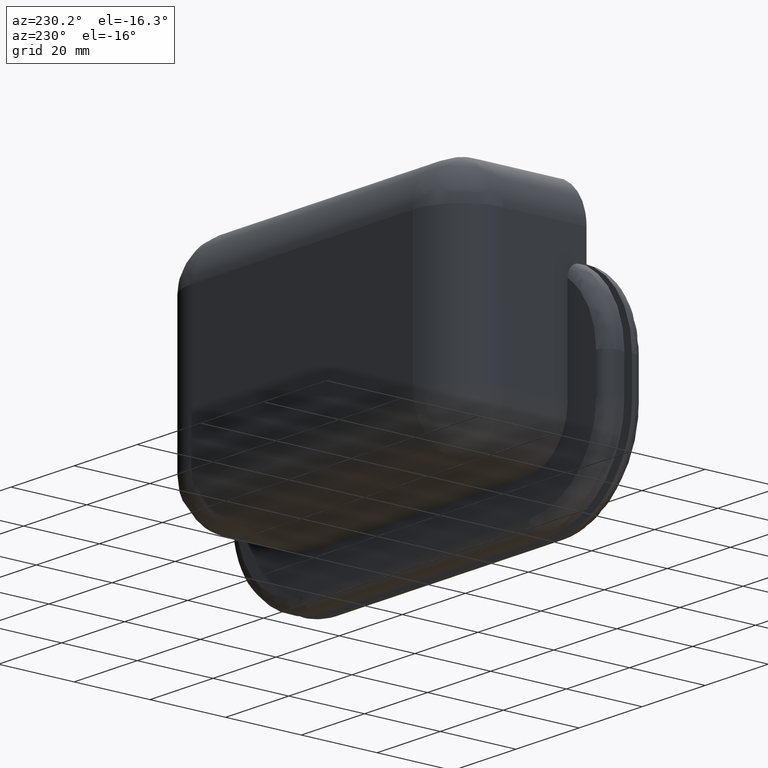
[diagram: clean part render]
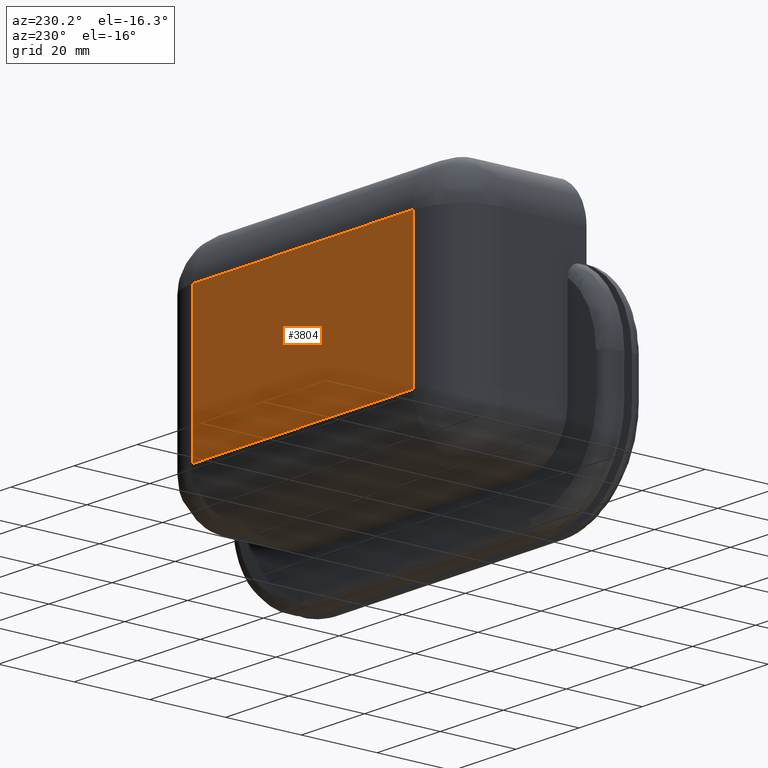
[diagram: same view with one face highlighted and labeled with its STEP entity id]
A machine part, auxiliary view. The second image highlights one B-rep face of the part: STEP entity #3804.
In plain terms, the highlighted face is a freeform B-spline surface patch.
Its self-contained STEP definition (entity closure, byte-faithful):
#1954=CARTESIAN_POINT('',(-35.0,43.0,34.0));
#1955=VERTEX_POINT('',#1954);
#2002=CARTESIAN_POINT('',(35.0,43.0,34.0));
#2003=VERTEX_POINT('',#2002);
#2017=CARTESIAN_POINT('',(-35.0,43.0,34.0));
#2018=CARTESIAN_POINT('',(35.0,43.0,34.0));
#2019=QUASI_UNIFORM_CURVE('',1,(#2017,#2018),.UNSPECIFIED.,.F.,.U.);
#2020=EDGE_CURVE('',#1955,#2003,#2019,.T.);
#2045=CARTESIAN_POINT('',(-35.0,43.0,-3.999999999999905));
#2046=VERTEX_POINT('',#2045);
#2068=CARTESIAN_POINT('',(-35.0,43.0,-3.999999999999905));
#2069=CARTESIAN_POINT('',(-35.0,43.0,34.0));
#2070=QUASI_UNIFORM_CURVE('',1,(#2068,#2069),.UNSPECIFIED.,.F.,.U.);
#2071=EDGE_CURVE('',#2046,#1955,#2070,.T.);
#2249=CARTESIAN_POINT('',(35.0,43.0,-3.999999999999905));
#2250=VERTEX_POINT('',#2249);
#2264=CARTESIAN_POINT('',(35.0,43.0,34.0));
#2265=CARTESIAN_POINT('',(35.0,43.0,-3.999999999999905));
#2266=QUASI_UNIFORM_CURVE('',1,(#2264,#2265),.UNSPECIFIED.,.F.,.U.);
#2267=EDGE_CURVE('',#2003,#2250,#2266,.T.);
#2313=CARTESIAN_POINT('',(35.0,43.0,-3.999999999999905));
#2314=CARTESIAN_POINT('',(-35.0,43.0,-3.999999999999905));
#2315=QUASI_UNIFORM_CURVE('',1,(#2313,#2314),.UNSPECIFIED.,.F.,.U.);
#2316=EDGE_CURVE('',#2250,#2046,#2315,.T.);
#3793=CARTESIAN_POINT('',(-38.496499864326417,43.0,-5.898099926348531));
#3794=CARTESIAN_POINT('',(-38.496499864326417,43.0,35.898100945588048));
#3795=CARTESIAN_POINT('',(38.496501741872727,43.0,-5.898099926348531));
#3796=CARTESIAN_POINT('',(38.496501741872727,43.0,35.898100945588048));
#3797=B_SPLINE_SURFACE_WITH_KNOTS('',1,1,((#3793,#3795),(#3794,#3796)),.UNSPECIFIED.,.F.,.F.,.U.,(2,2),(2,2),(0.0,41.796200871936577),(0.0,76.993001606199158),.UNSPECIFIED.);
#3798=ORIENTED_EDGE('',*,*,#2267,.T.);
#3799=ORIENTED_EDGE('',*,*,#2316,.T.);
#3800=ORIENTED_EDGE('',*,*,#2071,.T.);
#3801=ORIENTED_EDGE('',*,*,#2020,.T.);
#3802=EDGE_LOOP('',(#3798,#3799,#3800,#3801));
#3803=FACE_OUTER_BOUND('',#3802,.T.);
#3804=ADVANCED_FACE('',(#3803),#3797,.T.);